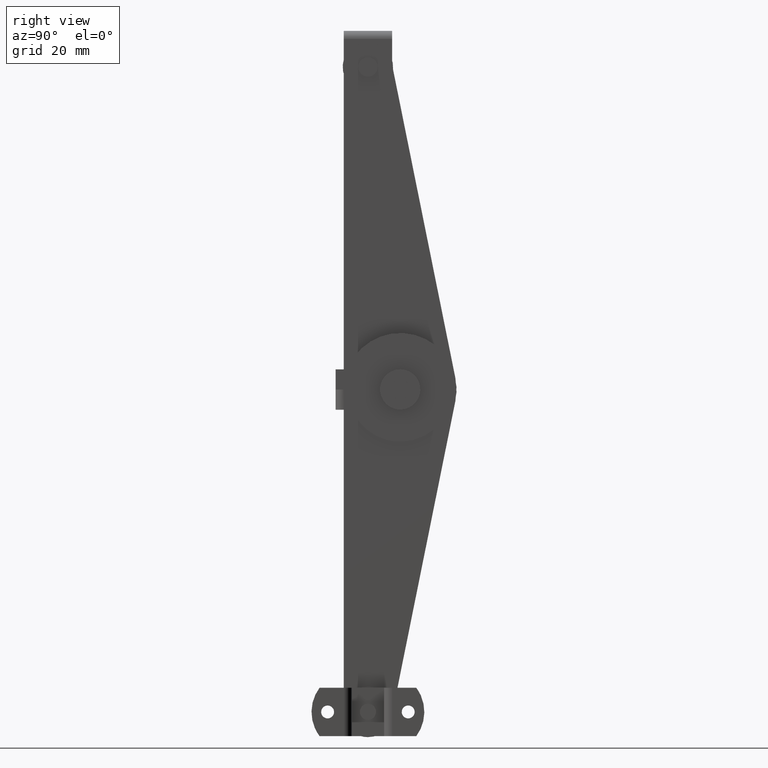
[diagram: clean part render]
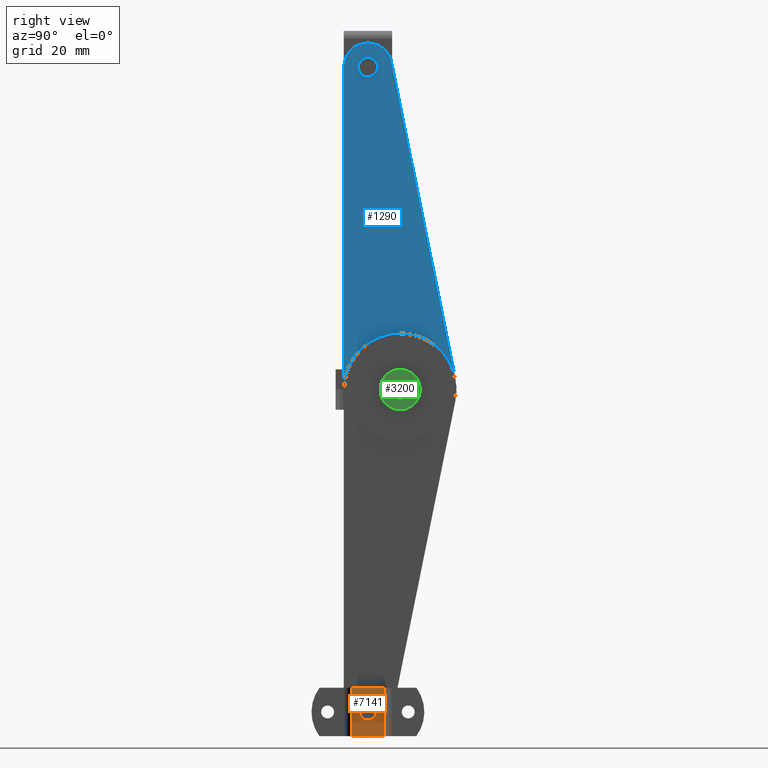
[diagram: same view with three faces highlighted in distinct colors, each labeled with its STEP entity id]
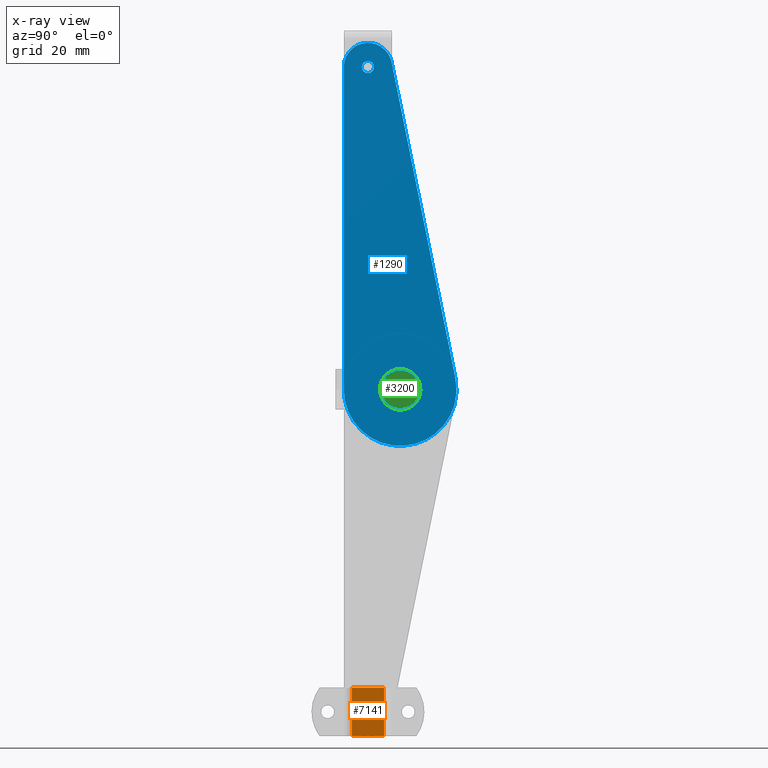
[diagram: x-ray of the same camera — body ghosted, the three highlighted faces saturated]
A machine part, right view with three faces highlighted in distinct colors.
The next image is the same camera in x-ray (body ghosted, the three faces saturated) — at least one of them is partly hidden behind the body in this view.
Their STEP definitions:

[orange] entity #7141 — the highlighted face is a freeform B-spline surface patch.
#6400=CARTESIAN_POINT('',(-4.0,-1.489514284250863,-79.822948603471644));
#6401=VERTEX_POINT('',#6400);
#6407=CARTESIAN_POINT('',(-4.0,0.0,-81.500000000000000));
#6408=VERTEX_POINT('',#6407);
#6409=CARTESIAN_POINT('',(-4.000000000000000,-1.489514284250863,-79.822948603471644));
#6410=CARTESIAN_POINT('',(-4.0,-1.500000000000001,-79.911163775508015));
#6411=CARTESIAN_POINT('',(-4.0,-1.500000000000000,-80.0));
#6412=CARTESIAN_POINT('',(-4.000000000000000,-1.500000000000000,-81.500000000000000));
#6413=CARTESIAN_POINT('',(-4.0,0.0,-81.500000000000000));
#6421=(BOUNDED_CURVE()B_SPLINE_CURVE(2,(#6409,#6410,#6411,#6412,#6413),.UNSPECIFIED.,.F.,.U.)B_SPLINE_CURVE_WITH_KNOTS((3,2,3),(0.229562463407722,0.250000000000000,0.500000000000000),.UNSPECIFIED.)CURVE()GEOMETRIC_REPRESENTATION_ITEM()RATIONAL_B_SPLINE_CURVE((0.956026734375946,0.976055936491480,1.0,0.707106781186548,1.0))REPRESENTATION_ITEM(''));
#6422=EDGE_CURVE('',#6401,#6408,#6421,.T.);
#6424=CARTESIAN_POINT('',(-4.0,1.497202197493665,-80.091572811577123));
#6425=VERTEX_POINT('',#6424);
#6426=CARTESIAN_POINT('',(-4.0,0.0,-81.500000000000000));
#6427=CARTESIAN_POINT('',(-4.000000000000001,1.411059096062622,-81.500000000000000));
#6428=CARTESIAN_POINT('',(-4.000000000000001,1.497202197493665,-80.091572811577123));
#6436=(BOUNDED_CURVE()B_SPLINE_CURVE(2,(#6426,#6427,#6428),.UNSPECIFIED.,.F.,.U.)B_SPLINE_CURVE_WITH_KNOTS((3,3),(0.500000000000000,0.739332961717635),.UNSPECIFIED.)CURVE()GEOMETRIC_REPRESENTATION_ITEM()RATIONAL_B_SPLINE_CURVE((1.0,0.719603993897460,0.976072040549457))REPRESENTATION_ITEM(''));
#6437=EDGE_CURVE('',#6408,#6425,#6436,.T.);
#6511=CARTESIAN_POINT('',(-4.0,0.0,-78.500000000000000));
#6512=VERTEX_POINT('',#6511);
#6513=CARTESIAN_POINT('',(-4.000000000000000,1.497202197493665,-80.091572811577123));
#6514=CARTESIAN_POINT('',(-4.0,1.500000000000000,-80.045829147229085));
#6515=CARTESIAN_POINT('',(-4.0,1.500000000000000,-80.0));
#6516=CARTESIAN_POINT('',(-4.000000000000000,1.500000000000000,-78.500000000000000));
#6517=CARTESIAN_POINT('',(-4.0,0.0,-78.500000000000000));
#6525=(BOUNDED_CURVE()B_SPLINE_CURVE(2,(#6513,#6514,#6515,#6516,#6517),.UNSPECIFIED.,.F.,.U.)B_SPLINE_CURVE_WITH_KNOTS((3,2,3),(0.739332961717635,0.750000000000000,1.0),.UNSPECIFIED.)CURVE()GEOMETRIC_REPRESENTATION_ITEM()RATIONAL_B_SPLINE_CURVE((0.976072040549456,0.987502787289087,1.0,0.707106781186548,1.0))REPRESENTATION_ITEM(''));
#6526=EDGE_CURVE('',#6425,#6512,#6525,.T.);
#6528=CARTESIAN_POINT('',(-4.0,0.0,-78.500000000000000));
#6529=CARTESIAN_POINT('',(-4.000000000000001,-1.332261708684824,-78.499999999999986));
#6530=CARTESIAN_POINT('',(-4.000000000000001,-1.489514284250863,-79.822948603471644));
#6538=(BOUNDED_CURVE()B_SPLINE_CURVE(2,(#6528,#6529,#6530),.UNSPECIFIED.,.F.,.U.)B_SPLINE_CURVE_WITH_KNOTS((3,3),(0.0,0.229562463407722),.UNSPECIFIED.)CURVE()GEOMETRIC_REPRESENTATION_ITEM()RATIONAL_B_SPLINE_CURVE((1.0,0.731050844695067,0.956026734375946))REPRESENTATION_ITEM(''));
#6539=EDGE_CURVE('',#6512,#6401,#6538,.T.);
#6697=CARTESIAN_POINT('',(-4.0,4.0,-86.000016000000002));
#6698=VERTEX_POINT('',#6697);
#6704=CARTESIAN_POINT('',(-4.0,-4.0,-86.000016000000002));
#6705=VERTEX_POINT('',#6704);
#6706=CARTESIAN_POINT('',(-4.0,4.0,-86.000016000000002));
#6707=CARTESIAN_POINT('',(-4.0,-4.0,-86.000016000000002));
#6708=QUASI_UNIFORM_CURVE('',1,(#6706,#6707),.UNSPECIFIED.,.F.,.U.);
#6709=EDGE_CURVE('',#6698,#6705,#6708,.T.);
#6908=CARTESIAN_POINT('',(-4.0,-4.0,-74.000016000000002));
#6909=VERTEX_POINT('',#6908);
#6915=CARTESIAN_POINT('',(-4.0,4.0,-74.000016000000002));
#6916=VERTEX_POINT('',#6915);
#6917=CARTESIAN_POINT('',(-4.0,4.0,-74.000016000000002));
#6918=CARTESIAN_POINT('',(-4.0,-4.0,-74.000016000000002));
#6919=QUASI_UNIFORM_CURVE('',1,(#6917,#6918),.UNSPECIFIED.,.F.,.U.);
#6920=EDGE_CURVE('',#6916,#6909,#6919,.T.);
#7110=CARTESIAN_POINT('',(-4.0,-4.0,-74.000016000000002));
#7111=CARTESIAN_POINT('',(-4.0,-4.0,-86.000016000000002));
#7112=QUASI_UNIFORM_CURVE('',1,(#7110,#7111),.UNSPECIFIED.,.F.,.U.);
#7113=EDGE_CURVE('',#6909,#6705,#7112,.T.);
#7120=CARTESIAN_POINT('',(-4.0,-4.399599984494448,-73.400615277598860));
#7121=CARTESIAN_POINT('',(-4.0,-4.399599984494448,-86.599415434940838));
#7122=CARTESIAN_POINT('',(-4.0,4.399600199071169,-73.400615277598860));
#7123=CARTESIAN_POINT('',(-4.0,4.399600199071169,-86.599415434940838));
#7124=B_SPLINE_SURFACE_WITH_KNOTS('',1,1,((#7120,#7122),(#7121,#7123)),.UNSPECIFIED.,.F.,.F.,.U.,(2,2),(2,2),(0.0,13.198800157341980),(0.0,8.799200183565617),.UNSPECIFIED.);
#7125=ORIENTED_EDGE('',*,*,#6709,.F.);
#7126=CARTESIAN_POINT('',(-4.0,4.0,-74.000016000000002));
#7127=CARTESIAN_POINT('',(-4.0,4.0,-86.000016000000002));
#7128=QUASI_UNIFORM_CURVE('',1,(#7126,#7127),.UNSPECIFIED.,.F.,.U.);
#7129=EDGE_CURVE('',#6916,#6698,#7128,.T.);
#7130=ORIENTED_EDGE('',*,*,#7129,.F.);
#7131=ORIENTED_EDGE('',*,*,#6920,.T.);
#7132=ORIENTED_EDGE('',*,*,#7113,.T.);
#7133=EDGE_LOOP('',(#7125,#7130,#7131,#7132));
#7134=FACE_OUTER_BOUND('',#7133,.T.);
#7135=ORIENTED_EDGE('',*,*,#6437,.F.);
#7136=ORIENTED_EDGE('',*,*,#6422,.F.);
#7137=ORIENTED_EDGE('',*,*,#6539,.F.);
#7138=ORIENTED_EDGE('',*,*,#6526,.F.);
#7139=EDGE_LOOP('',(#7135,#7136,#7137,#7138));
#7140=FACE_BOUND('',#7139,.T.);
#7141=ADVANCED_FACE('',(#7134,#7140),#7124,.T.);

[blue] entity #1290 — the highlighted face is a freeform B-spline surface patch.
#712=CARTESIAN_POINT('',(-8.500000000000000,1.497202197493665,-80.091572811577123));
#713=VERTEX_POINT('',#712);
#719=CARTESIAN_POINT('',(-8.500000000000000,0.0,-81.500000000000000));
#720=VERTEX_POINT('',#719);
#721=CARTESIAN_POINT('',(-8.500000000000000,0.0,-81.500000000000000));
#722=CARTESIAN_POINT('',(-8.500000000000002,1.411059096062622,-81.500000000000000));
#723=CARTESIAN_POINT('',(-8.500000000000000,1.497202197493665,-80.091572811577123));
#731=(BOUNDED_CURVE()B_SPLINE_CURVE(2,(#721,#722,#723),.UNSPECIFIED.,.F.,.U.)B_SPLINE_CURVE_WITH_KNOTS((3,3),(0.500000000000000,0.739332961717635),.UNSPECIFIED.)CURVE()GEOMETRIC_REPRESENTATION_ITEM()RATIONAL_B_SPLINE_CURVE((1.0,0.719603993897460,0.976072040549457))REPRESENTATION_ITEM(''));
#732=EDGE_CURVE('',#720,#713,#731,.T.);
#734=CARTESIAN_POINT('',(-8.500000000000000,-1.489514284250863,-79.822948603471644));
#735=VERTEX_POINT('',#734);
#736=CARTESIAN_POINT('',(-8.500000000000000,-1.489514284250863,-79.822948603471644));
#737=CARTESIAN_POINT('',(-8.500000000000000,-1.500000000000001,-79.911163775508015));
#738=CARTESIAN_POINT('',(-8.500000000000000,-1.500000000000000,-80.0));
#739=CARTESIAN_POINT('',(-8.500000000000002,-1.500000000000000,-81.500000000000000));
#740=CARTESIAN_POINT('',(-8.500000000000000,0.0,-81.500000000000000));
#748=(BOUNDED_CURVE()B_SPLINE_CURVE(2,(#736,#737,#738,#739,#740),.UNSPECIFIED.,.F.,.U.)B_SPLINE_CURVE_WITH_KNOTS((3,2,3),(0.229562463407722,0.250000000000000,0.500000000000000),.UNSPECIFIED.)CURVE()GEOMETRIC_REPRESENTATION_ITEM()RATIONAL_B_SPLINE_CURVE((0.956026734375946,0.976055936491480,1.0,0.707106781186548,1.0))REPRESENTATION_ITEM(''));
#749=EDGE_CURVE('',#735,#720,#748,.T.);
#793=CARTESIAN_POINT('',(-8.500000000000000,0.0,-78.500000000000000));
#794=VERTEX_POINT('',#793);
#795=CARTESIAN_POINT('',(-8.500000000000000,0.0,-78.500000000000000));
#796=CARTESIAN_POINT('',(-8.500000000000002,-1.332261708684824,-78.499999999999986));
#797=CARTESIAN_POINT('',(-8.500000000000000,-1.489514284250863,-79.822948603471644));
#805=(BOUNDED_CURVE()B_SPLINE_CURVE(2,(#795,#796,#797),.UNSPECIFIED.,.F.,.U.)B_SPLINE_CURVE_WITH_KNOTS((3,3),(0.0,0.229562463407722),.UNSPECIFIED.)CURVE()GEOMETRIC_REPRESENTATION_ITEM()RATIONAL_B_SPLINE_CURVE((1.0,0.731050844695067,0.956026734375946))REPRESENTATION_ITEM(''));
#806=EDGE_CURVE('',#794,#735,#805,.T.);
#808=CARTESIAN_POINT('',(-8.500000000000000,1.497202197493665,-80.091572811577123));
#809=CARTESIAN_POINT('',(-8.500000000000002,1.500000000000000,-80.045829147229085));
#810=CARTESIAN_POINT('',(-8.500000000000000,1.500000000000000,-80.0));
#811=CARTESIAN_POINT('',(-8.500000000000002,1.500000000000000,-78.500000000000000));
#812=CARTESIAN_POINT('',(-8.500000000000000,0.0,-78.500000000000000));
#820=(BOUNDED_CURVE()B_SPLINE_CURVE(2,(#808,#809,#810,#811,#812),.UNSPECIFIED.,.F.,.U.)B_SPLINE_CURVE_WITH_KNOTS((3,2,3),(0.739332961717635,0.750000000000000,1.0),.UNSPECIFIED.)CURVE()GEOMETRIC_REPRESENTATION_ITEM()RATIONAL_B_SPLINE_CURVE((0.976072040549456,0.987502787289087,1.0,0.707106781186548,1.0))REPRESENTATION_ITEM(''));
#821=EDGE_CURVE('',#713,#794,#820,.T.);
#898=CARTESIAN_POINT('',(-8.500000000000000,9.497202197493667,-0.091572811577117));
#899=VERTEX_POINT('',#898);
#905=CARTESIAN_POINT('',(-8.500000000000000,8.0,-1.500000000000000));
#906=VERTEX_POINT('',#905);
#907=CARTESIAN_POINT('',(-8.500000000000000,8.0,-1.500000000000000));
#908=CARTESIAN_POINT('',(-8.500000000000000,9.411059096062640,-1.500000000000000));
#909=CARTESIAN_POINT('',(-8.500000000000000,9.497202197493667,-0.091572811577117));
#917=(BOUNDED_CURVE()B_SPLINE_CURVE(2,(#907,#908,#909),.UNSPECIFIED.,.F.,.U.)B_SPLINE_CURVE_WITH_KNOTS((3,3),(0.500000000000000,0.739332961717638),.UNSPECIFIED.)CURVE()GEOMETRIC_REPRESENTATION_ITEM()RATIONAL_B_SPLINE_CURVE((1.0,0.719603993897457,0.976072040549461))REPRESENTATION_ITEM(''));
#918=EDGE_CURVE('',#906,#899,#917,.T.);
#920=CARTESIAN_POINT('',(-8.500000000000000,6.510485715749137,0.177051396528347));
#921=VERTEX_POINT('',#920);
#922=CARTESIAN_POINT('',(-8.500000000000000,6.510485715749137,0.177051396528347));
#923=CARTESIAN_POINT('',(-8.500000000000000,6.500000000000001,0.088836224491979));
#924=CARTESIAN_POINT('',(-8.500000000000000,6.500000000000001,4.898425E-016));
#925=CARTESIAN_POINT('',(-8.500000000000002,6.500000000000003,-1.500000000000000));
#926=CARTESIAN_POINT('',(-8.500000000000000,8.0,-1.500000000000000));
#934=(BOUNDED_CURVE()B_SPLINE_CURVE(2,(#922,#923,#924,#925,#926),.UNSPECIFIED.,.F.,.U.)B_SPLINE_CURVE_WITH_KNOTS((3,2,3),(0.229562463407722,0.250000000000000,0.500000000000000),.UNSPECIFIED.)CURVE()GEOMETRIC_REPRESENTATION_ITEM()RATIONAL_B_SPLINE_CURVE((0.956026734375947,0.976055936491480,1.0,0.707106781186548,1.0))REPRESENTATION_ITEM(''));
#935=EDGE_CURVE('',#921,#906,#934,.T.);
#979=CARTESIAN_POINT('',(-8.500000000000000,8.0,1.500000000000000));
#980=VERTEX_POINT('',#979);
#981=CARTESIAN_POINT('',(-8.500000000000000,8.0,1.500000000000000));
#982=CARTESIAN_POINT('',(-8.500000000000000,6.667738291315176,1.500000000000001));
#983=CARTESIAN_POINT('',(-8.500000000000000,6.510485715749137,0.177051396528347));
#991=(BOUNDED_CURVE()B_SPLINE_CURVE(2,(#981,#982,#983),.UNSPECIFIED.,.F.,.U.)B_SPLINE_CURVE_WITH_KNOTS((3,3),(0.0,0.229562463407722),.UNSPECIFIED.)CURVE()GEOMETRIC_REPRESENTATION_ITEM()RATIONAL_B_SPLINE_CURVE((1.0,0.731050844695067,0.956026734375947))REPRESENTATION_ITEM(''));
#992=EDGE_CURVE('',#980,#921,#991,.T.);
#994=CARTESIAN_POINT('',(-8.500000000000000,9.497202197493667,-0.091572811577117));
#995=CARTESIAN_POINT('',(-8.500000000000002,9.500000000000002,-0.045829147229093));
#996=CARTESIAN_POINT('',(-8.500000000000000,9.500000000000000,4.898425E-016));
#997=CARTESIAN_POINT('',(-8.500000000000002,9.500000000000000,1.500000000000001));
#998=CARTESIAN_POINT('',(-8.500000000000000,8.0,1.500000000000000));
#1006=(BOUNDED_CURVE()B_SPLINE_CURVE(2,(#994,#995,#996,#997,#998),.UNSPECIFIED.,.F.,.U.)B_SPLINE_CURVE_WITH_KNOTS((3,2,3),(0.739332961717637,0.750000000000000,1.0),.UNSPECIFIED.)CURVE()GEOMETRIC_REPRESENTATION_ITEM()RATIONAL_B_SPLINE_CURVE((0.976072040549460,0.987502787289090,1.0,0.707106781186548,1.0))REPRESENTATION_ITEM(''));
#1007=EDGE_CURVE('',#899,#980,#1006,.T.);
#1130=CARTESIAN_POINT('',(-8.500000000000000,-6.000000000000110,-5.0));
#1131=VERTEX_POINT('',#1130);
#1132=CARTESIAN_POINT('',(-8.500000000000000,-6.0,-5.288801E-015));
#1133=VERTEX_POINT('',#1132);
#1134=CARTESIAN_POINT('',(-8.500000000000000,-6.000000000000110,-5.0));
#1135=CARTESIAN_POINT('',(-8.500000000000000,-6.0,-5.288801E-015));
#1136=QUASI_UNIFORM_CURVE('',1,(#1134,#1135),.UNSPECIFIED.,.F.,.U.);
#1137=EDGE_CURVE('',#1131,#1133,#1136,.T.);
#1222=CARTESIAN_POINT('',(-8.500000000000000,-7.398435637660045,18.994134648643868));
#1223=CARTESIAN_POINT('',(-8.500000000000000,23.395146937282551,18.994134648643868));
#1224=CARTESIAN_POINT('',(-8.500000000000000,-7.398435637660045,-90.994915500843646));
#1225=CARTESIAN_POINT('',(-8.500000000000000,23.395146937282551,-90.994915500843646));
#1226=B_SPLINE_SURFACE_WITH_KNOTS('',1,1,((#1222,#1224),(#1223,#1225)),.UNSPECIFIED.,.F.,.F.,.U.,(2,2),(2,2),(0.0,30.793582574942601),(0.0,109.989050149487500),.UNSPECIFIED.);
#1227=CARTESIAN_POINT('',(-8.500000000000000,-6.000000000000110,-79.999983999999898));
#1228=VERTEX_POINT('',#1227);
#1229=CARTESIAN_POINT('',(-8.500000000000000,-6.000000000000110,-5.0));
#1230=CARTESIAN_POINT('',(-8.500000000000000,-6.000000000000110,-79.999983999999898));
#1231=QUASI_UNIFORM_CURVE('',1,(#1229,#1230),.UNSPECIFIED.,.F.,.U.);
#1232=EDGE_CURVE('',#1131,#1228,#1231,.T.);
#1233=ORIENTED_EDGE('',*,*,#1232,.F.);
#1234=ORIENTED_EDGE('',*,*,#1137,.T.);
#1235=CARTESIAN_POINT('',(-8.500000000000000,21.717654369736650,-2.797491482104180));
#1236=VERTEX_POINT('',#1235);
#1237=CARTESIAN_POINT('',(-8.500000000000000,21.717654369736628,-2.797491482104177));
#1238=CARTESIAN_POINT('',(-8.500000000000000,23.460367806835894,5.748000344609852));
#1239=CARTESIAN_POINT('',(-8.500000000000000,16.558346955534638,11.079471891236111));
#1240=CARTESIAN_POINT('',(-8.500000000000000,9.656326104233390,16.410943437862361));
#1241=CARTESIAN_POINT('',(-8.500000000000000,1.828163052116696,12.566162050870680));
#1242=CARTESIAN_POINT('',(-8.500000000000000,-5.999999999999999,8.721380663879009));
#1243=CARTESIAN_POINT('',(-8.500000000000000,-6.0,4.898425E-016));
#1251=(BOUNDED_CURVE()B_SPLINE_CURVE(2,(#1237,#1238,#1239,#1240,#1241,#1242,#1243),.UNSPECIFIED.,.F.,.U.)B_SPLINE_CURVE_WITH_KNOTS((3,2,2,3),(0.0,0.333333333333333,0.666666666666667,1.0),.UNSPECIFIED.)CURVE()GEOMETRIC_REPRESENTATION_ITEM()RATIONAL_B_SPLINE_CURVE((1.0,0.848777207598489,1.0,0.848777207598489,1.0,0.848777207598489,1.0))REPRESENTATION_ITEM(''));
#1252=EDGE_CURVE('',#1236,#1133,#1251,.T.);
#1253=ORIENTED_EDGE('',*,*,#1252,.F.);
#1254=CARTESIAN_POINT('',(-8.500000000000000,5.878711889223000,-81.200295011158303));
#1255=VERTEX_POINT('',#1254);
#1256=CARTESIAN_POINT('',(-8.500000000000000,5.878711889223000,-81.200295011158303));
#1257=CARTESIAN_POINT('',(-8.500000000000000,21.717654369736650,-2.797491482104180));
#1258=QUASI_UNIFORM_CURVE('',1,(#1256,#1257),.UNSPECIFIED.,.F.,.U.);
#1259=EDGE_CURVE('',#1255,#1236,#1258,.T.);
#1260=ORIENTED_EDGE('',*,*,#1259,.F.);
#1261=CARTESIAN_POINT('',(-8.500000000000000,-6.0,-79.999983999999898));
#1262=CARTESIAN_POINT('',(-8.500000000000000,-6.000000000000001,-85.424254417550614));
#1263=CARTESIAN_POINT('',(-8.500000000000000,-0.603211681195740,-85.969584963855780));
#1264=CARTESIAN_POINT('',(-8.500000000000000,4.793576637608520,-86.514915510160961));
#1265=CARTESIAN_POINT('',(-8.500000000000000,5.878711889223003,-81.200295011158303));
#1273=(BOUNDED_CURVE()B_SPLINE_CURVE(2,(#1261,#1262,#1263,#1264,#1265),.UNSPECIFIED.,.F.,.U.)B_SPLINE_CURVE_WITH_KNOTS((3,2,3),(0.0,0.500000000000000,1.0),.UNSPECIFIED.)CURVE()GEOMETRIC_REPRESENTATION_ITEM()RATIONAL_B_SPLINE_CURVE((1.0,0.741800269681567,1.0,0.741800269681567,1.0))REPRESENTATION_ITEM(''));
#1274=EDGE_CURVE('',#1228,#1255,#1273,.T.);
#1275=ORIENTED_EDGE('',*,*,#1274,.F.);
#1276=EDGE_LOOP('',(#1233,#1234,#1253,#1260,#1275));
#1277=FACE_OUTER_BOUND('',#1276,.T.);
#1278=ORIENTED_EDGE('',*,*,#918,.T.);
#1279=ORIENTED_EDGE('',*,*,#1007,.T.);
#1280=ORIENTED_EDGE('',*,*,#992,.T.);
#1281=ORIENTED_EDGE('',*,*,#935,.T.);
#1282=EDGE_LOOP('',(#1278,#1279,#1280,#1281));
#1283=FACE_BOUND('',#1282,.T.);
#1284=ORIENTED_EDGE('',*,*,#732,.T.);
#1285=ORIENTED_EDGE('',*,*,#821,.T.);
#1286=ORIENTED_EDGE('',*,*,#806,.T.);
#1287=ORIENTED_EDGE('',*,*,#749,.T.);
#1288=EDGE_LOOP('',(#1284,#1285,#1286,#1287));
#1289=FACE_BOUND('',#1288,.T.);
#1290=ADVANCED_FACE('',(#1277,#1283,#1289),#1226,.T.);

[green] entity #3200 — the highlighted face is a freeform B-spline surface patch.
#2833=CARTESIAN_POINT('',(-4.400025316634970,6.510485715749137,0.177051396528347));
#2834=VERTEX_POINT('',#2833);
#2835=CARTESIAN_POINT('',(-4.400025316634970,8.0,-1.500000000000000));
#2836=VERTEX_POINT('',#2835);
#2837=CARTESIAN_POINT('',(-4.400025316634970,6.510485715749137,0.177051396528347));
#2838=CARTESIAN_POINT('',(-4.400025316634971,6.500000000000001,0.088836224491979));
#2839=CARTESIAN_POINT('',(-4.400025316634970,6.500000000000001,4.898425E-016));
#2840=CARTESIAN_POINT('',(-4.400025316634971,6.500000000000003,-1.500000000000000));
#2841=CARTESIAN_POINT('',(-4.400025316634970,8.0,-1.500000000000000));
#2849=(BOUNDED_CURVE()B_SPLINE_CURVE(2,(#2837,#2838,#2839,#2840,#2841),.UNSPECIFIED.,.F.,.U.)B_SPLINE_CURVE_WITH_KNOTS((3,2,3),(0.229562463407722,0.250000000000000,0.500000000000000),.UNSPECIFIED.)CURVE()GEOMETRIC_REPRESENTATION_ITEM()RATIONAL_B_SPLINE_CURVE((0.956026734375947,0.976055936491480,1.0,0.707106781186548,1.0))REPRESENTATION_ITEM(''));
#2850=EDGE_CURVE('',#2834,#2836,#2849,.T.);
#2852=CARTESIAN_POINT('',(-4.400025316634970,9.497202197493666,-0.091572811577114));
#2853=VERTEX_POINT('',#2852);
#2854=CARTESIAN_POINT('',(-4.400025316634970,8.0,-1.500000000000000));
#2855=CARTESIAN_POINT('',(-4.400025316634970,9.411059096062640,-1.500000000000000));
#2856=CARTESIAN_POINT('',(-4.400025316634969,9.497202197493666,-0.091572811577114));
#2864=(BOUNDED_CURVE()B_SPLINE_CURVE(2,(#2854,#2855,#2856),.UNSPECIFIED.,.F.,.U.)B_SPLINE_CURVE_WITH_KNOTS((3,3),(0.500000000000000,0.739332961717638),.UNSPECIFIED.)CURVE()GEOMETRIC_REPRESENTATION_ITEM()RATIONAL_B_SPLINE_CURVE((1.0,0.719603993897457,0.976072040549461))REPRESENTATION_ITEM(''));
#2865=EDGE_CURVE('',#2836,#2853,#2864,.T.);
#2932=CARTESIAN_POINT('',(-4.400025316634970,8.0,1.500000000000000));
#2933=VERTEX_POINT('',#2932);
#2934=CARTESIAN_POINT('',(-4.400025316634970,8.0,1.500000000000000));
#2935=CARTESIAN_POINT('',(-4.400025316634969,6.667738291315176,1.500000000000001));
#2936=CARTESIAN_POINT('',(-4.400025316634970,6.510485715749137,0.177051396528347));
#2944=(BOUNDED_CURVE()B_SPLINE_CURVE(2,(#2934,#2935,#2936),.UNSPECIFIED.,.F.,.U.)B_SPLINE_CURVE_WITH_KNOTS((3,3),(0.0,0.229562463407722),.UNSPECIFIED.)CURVE()GEOMETRIC_REPRESENTATION_ITEM()RATIONAL_B_SPLINE_CURVE((1.0,0.731050844695067,0.956026734375947))REPRESENTATION_ITEM(''));
#2945=EDGE_CURVE('',#2933,#2834,#2944,.T.);
#2979=CARTESIAN_POINT('',(-4.400025316634969,9.497202197493666,-0.091572811577114));
#2980=CARTESIAN_POINT('',(-4.400025316634970,9.499999999999998,-0.045829147229091));
#2981=CARTESIAN_POINT('',(-4.400025316634970,9.500000000000000,4.898425E-016));
#2982=CARTESIAN_POINT('',(-4.400025316634971,9.500000000000000,1.500000000000001));
#2983=CARTESIAN_POINT('',(-4.400025316634970,8.0,1.500000000000000));
#2991=(BOUNDED_CURVE()B_SPLINE_CURVE(2,(#2979,#2980,#2981,#2982,#2983),.UNSPECIFIED.,.F.,.U.)B_SPLINE_CURVE_WITH_KNOTS((3,2,3),(0.739332961717638,0.750000000000000,1.0),.UNSPECIFIED.)CURVE()GEOMETRIC_REPRESENTATION_ITEM()RATIONAL_B_SPLINE_CURVE((0.976072040549461,0.987502787289090,1.0,0.707106781186548,1.0))REPRESENTATION_ITEM(''));
#2992=EDGE_CURVE('',#2853,#2933,#2991,.T.);
#3019=CARTESIAN_POINT('',(-4.400025316634970,3.034952368245464,0.590171173820504));
#3020=VERTEX_POINT('',#3019);
#3021=CARTESIAN_POINT('',(-4.400025316634970,8.0,-4.999999999999999));
#3022=VERTEX_POINT('',#3021);
#3023=CARTESIAN_POINT('',(-4.400025316634970,3.034952368245464,0.590171173820504));
#3024=CARTESIAN_POINT('',(-4.400025316634969,3.000000000000000,0.296120598801936));
#3025=CARTESIAN_POINT('',(-4.400025316634970,3.0,4.898425E-016));
#3026=CARTESIAN_POINT('',(-4.400025316634971,3.0,-4.999999999999998));
#3027=CARTESIAN_POINT('',(-4.400025316634970,8.0,-4.999999999999999));
#3035=(BOUNDED_CURVE()B_SPLINE_CURVE(2,(#3023,#3024,#3025,#3026,#3027),.UNSPECIFIED.,.F.,.U.)B_SPLINE_CURVE_WITH_KNOTS((3,2,3),(0.229562473479106,0.250000000000000,0.500000000000000),.UNSPECIFIED.)CURVE()GEOMETRIC_REPRESENTATION_ITEM()RATIONAL_B_SPLINE_CURVE((0.956026754116270,0.976055948290841,1.0,0.707106781186548,1.0))REPRESENTATION_ITEM(''));
#3036=EDGE_CURVE('',#3020,#3022,#3035,.T.);
#3077=CARTESIAN_POINT('',(-4.400025316634970,12.990673992103670,-0.305242697766981));
#3078=VERTEX_POINT('',#3077);
#3084=CARTESIAN_POINT('',(-4.400025316634970,8.0,-4.999999999999999));
#3085=CARTESIAN_POINT('',(-4.400025316634969,12.703530334353434,-5.0));
#3086=CARTESIAN_POINT('',(-4.400025316634970,12.990673992103664,-0.305242697766981));
#3094=(BOUNDED_CURVE()B_SPLINE_CURVE(2,(#3084,#3085,#3086),.UNSPECIFIED.,.F.,.U.)B_SPLINE_CURVE_WITH_KNOTS((3,3),(0.500000000000000,0.739332962235559),.UNSPECIFIED.)CURVE()GEOMETRIC_REPRESENTATION_ITEM()RATIONAL_B_SPLINE_CURVE((1.0,0.719603993290675,0.976072041659465))REPRESENTATION_ITEM(''));
#3095=EDGE_CURVE('',#3022,#3078,#3094,.T.);
#3118=CARTESIAN_POINT('',(-4.400025316634970,8.0,5.000000000000001));
#3119=VERTEX_POINT('',#3118);
#3120=CARTESIAN_POINT('',(-4.400025316634970,8.0,5.000000000000001));
#3121=CARTESIAN_POINT('',(-4.400025316634971,3.559127371210022,5.000000000000002));
#3122=CARTESIAN_POINT('',(-4.400025316634970,3.034952368245465,0.590171173820504));
#3130=(BOUNDED_CURVE()B_SPLINE_CURVE(2,(#3120,#3121,#3122),.UNSPECIFIED.,.F.,.U.)B_SPLINE_CURVE_WITH_KNOTS((3,3),(0.0,0.229562473479106),.UNSPECIFIED.)CURVE()GEOMETRIC_REPRESENTATION_ITEM()RATIONAL_B_SPLINE_CURVE((1.0,0.731050832895707,0.956026754116270))REPRESENTATION_ITEM(''));
#3131=EDGE_CURVE('',#3119,#3020,#3130,.T.);
#3133=CARTESIAN_POINT('',(-4.400025316634970,12.990673992103666,-0.305242697766981));
#3134=CARTESIAN_POINT('',(-4.400025316634971,13.0,-0.152763816585900));
#3135=CARTESIAN_POINT('',(-4.400025316634970,13.0,4.898425E-016));
#3136=CARTESIAN_POINT('',(-4.400025316634971,13.000000000000004,5.000000000000002));
#3137=CARTESIAN_POINT('',(-4.400025316634970,8.0,5.000000000000001));
#3145=(BOUNDED_CURVE()B_SPLINE_CURVE(2,(#3133,#3134,#3135,#3136,#3137),.UNSPECIFIED.,.F.,.U.)B_SPLINE_CURVE_WITH_KNOTS((3,2,3),(0.739332962235559,0.750000000000000,1.0),.UNSPECIFIED.)CURVE()GEOMETRIC_REPRESENTATION_ITEM()RATIONAL_B_SPLINE_CURVE((0.976072041659464,0.987502787895872,1.0,0.707106781186548,1.0))REPRESENTATION_ITEM(''));
#3146=EDGE_CURVE('',#3078,#3119,#3145,.T.);
#3183=CARTESIAN_POINT('',(-4.400025316634895,2.500590641596174,5.499499980618061));
#3184=CARTESIAN_POINT('',(-4.400025316634895,13.499379049441959,5.499499980618061));
#3185=CARTESIAN_POINT('',(-4.400025316634895,2.500590641596174,-5.499500248838960));
#3186=CARTESIAN_POINT('',(-4.400025316634895,13.499379049441959,-5.499500248838960));
#3187=B_SPLINE_SURFACE_WITH_KNOTS('',1,1,((#3183,#3185),(#3184,#3186)),.UNSPECIFIED.,.F.,.F.,.U.,(2,2),(2,2),(0.0,10.998788407845790),(0.0,10.999000229457019),.UNSPECIFIED.);
#3188=ORIENTED_EDGE('',*,*,#3131,.T.);
#3189=ORIENTED_EDGE('',*,*,#3036,.T.);
#3190=ORIENTED_EDGE('',*,*,#3095,.T.);
#3191=ORIENTED_EDGE('',*,*,#3146,.T.);
#3192=EDGE_LOOP('',(#3188,#3189,#3190,#3191));
#3193=FACE_OUTER_BOUND('',#3192,.T.);
#3194=ORIENTED_EDGE('',*,*,#2865,.F.);
#3195=ORIENTED_EDGE('',*,*,#2850,.F.);
#3196=ORIENTED_EDGE('',*,*,#2945,.F.);
#3197=ORIENTED_EDGE('',*,*,#2992,.F.);
#3198=EDGE_LOOP('',(#3194,#3195,#3196,#3197));
#3199=FACE_BOUND('',#3198,.T.);
#3200=ADVANCED_FACE('',(#3193,#3199),#3187,.F.);